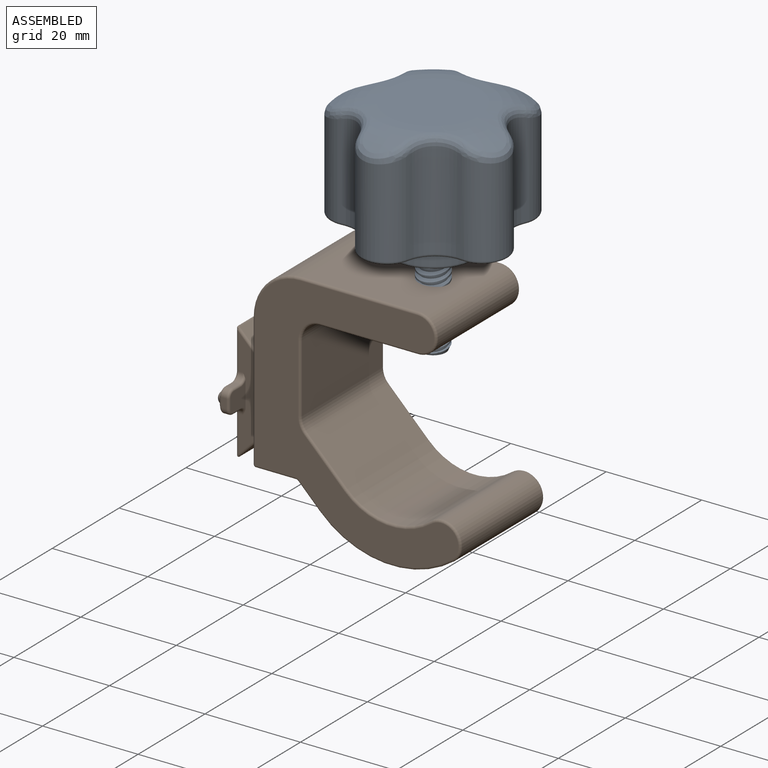
[diagram: assembled view]
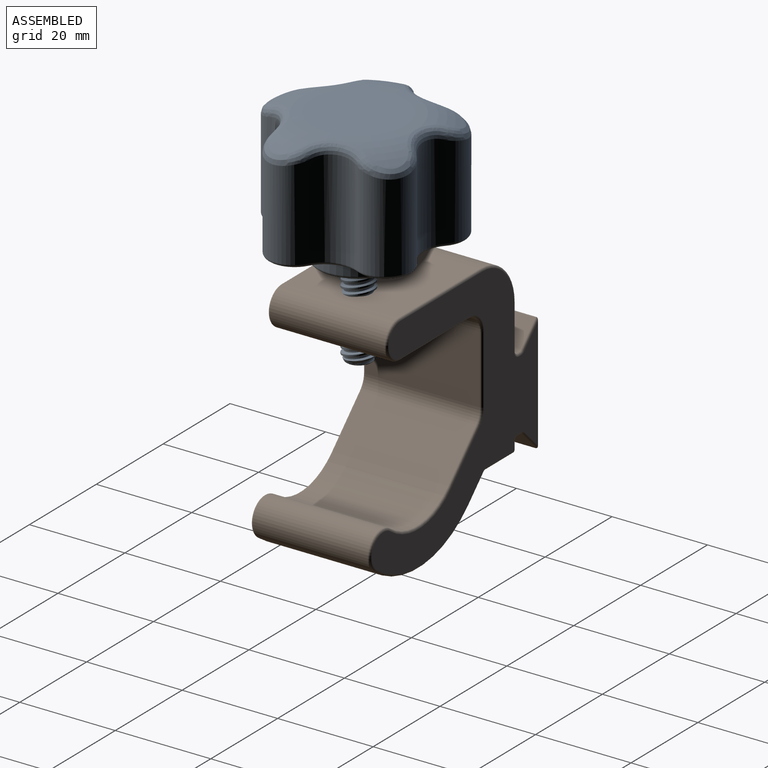
[diagram: assembled view, second angle]
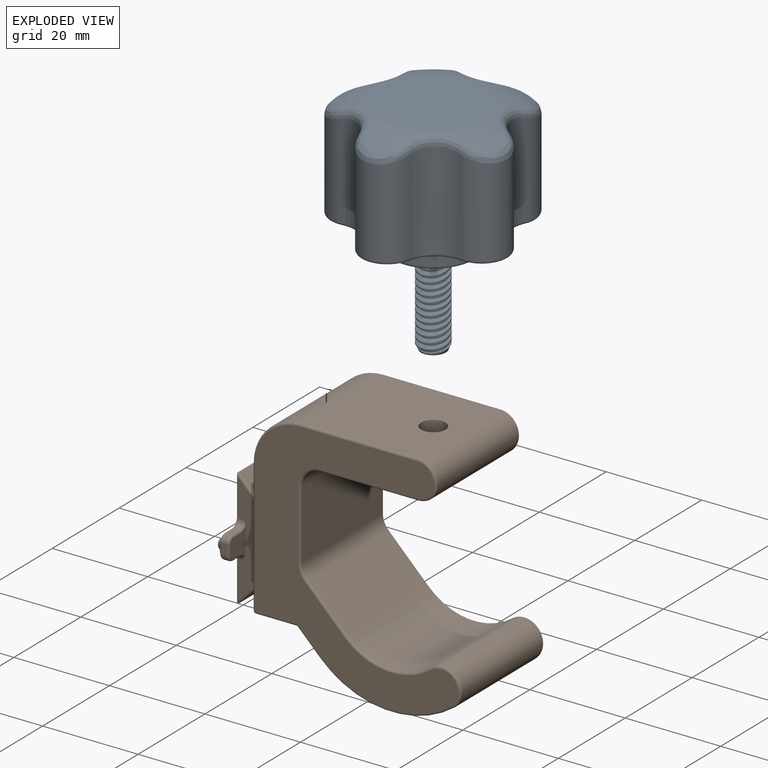
[diagram: exploded view]
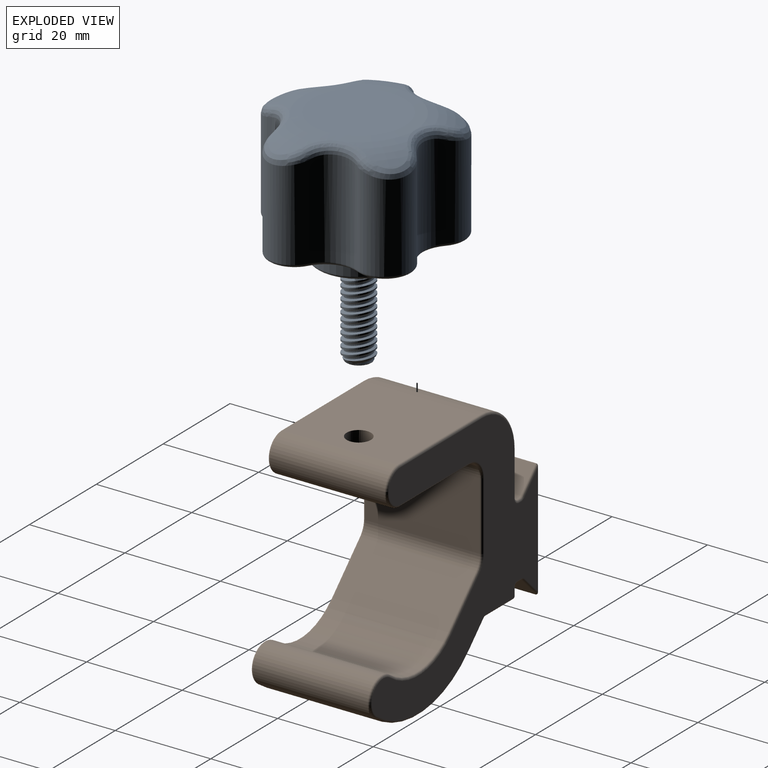
[diagram: exploded view, second angle]
ASSEMBLY  parts=2 mates=2
PART A: 103 faces, bbox 38.2x38.3x46.9 mm
  f0: cone r=2.69mm half-angle=60deg, axis (0,0.2,-0.98), area 0.1mm2, adj f2,f101
  f1: cone r=3.17mm half-angle=25deg, axis (0,0,1), area 0.9mm2, adj f5,f60
  f2: cone r=3.17mm half-angle=25deg, axis (0,0,1), area 13.9mm2, adj f0,f3,f61,f100,f101,f102
  f3: cone r=2.69mm half-angle=60deg, axis (0,0.2,-0.98), area 6.7mm2, adj f2,f4,f61
  f4: cylinder r=2.69mm len=5.39mm, axis (0,-0.2,0.98), area 5.4mm2, adj f3,f5
  f5: cone r=3.38mm half-angle=60deg, axis (0,-0.2,0.98), area 10.9mm2, adj f1,f4,f60
  f6: cone r=2.69mm half-angle=60deg, axis (0,0.2,-0.98), area 12mm2, adj f7,f60
  f7: cylinder r=2.69mm len=5.39mm, axis (0,-0.2,0.98), area 5.4mm2, adj f6,f8
  f8: cone r=3.38mm half-angle=60deg, axis (0,-0.2,0.98), area 11.6mm2, adj f7,f59
  f9: cone r=2.69mm half-angle=60deg, axis (0,0.2,-0.98), area 12mm2, adj f10,f59
  f10: cylinder r=2.69mm len=5.39mm, axis (0,-0.2,0.98), area 5.4mm2, adj f9,f11
  f11: cone r=3.38mm half-angle=60deg, axis (0,-0.2,0.98), area 11.6mm2, adj f10,f58
  f12: cone r=2.69mm half-angle=60deg, axis (0,0.2,-0.98), area 12mm2, adj f13,f58
  f13: cylinder r=2.69mm len=5.39mm, axis (0,-0.2,0.98), area 5.4mm2, adj f12,f14
  f14: cone r=3.38mm half-angle=60deg, axis (0,-0.2,0.98), area 11.6mm2, adj f13,f57
  f15: cone r=2.69mm half-angle=60deg, axis (0,0.2,-0.98), area 12mm2, adj f16,f57
  f16: cylinder r=2.69mm len=5.39mm, axis (0,-0.2,0.98), area 5.4mm2, adj f15,f17
  f17: cone r=3.38mm half-angle=60deg, axis (0,-0.2,0.98), area 11.6mm2, adj f16,f56
  f18: cone r=2.69mm half-angle=60deg, axis (0,0.2,-0.98), area 12mm2, adj f19,f56
  f19: cylinder r=2.69mm len=5.39mm, axis (0,-0.2,0.98), area 5.4mm2, adj f18,f20
  f20: cone r=3.38mm half-angle=60deg, axis (0,-0.2,0.98), area 11.6mm2, adj f19,f55
  f21: cone r=2.69mm half-angle=60deg, axis (0,0.2,-0.98), area 12mm2, adj f22,f55
  f22: cylinder r=2.69mm len=5.39mm, axis (0,-0.2,0.98), area 5.4mm2, adj f21,f23
  f23: cone r=3.38mm half-angle=60deg, axis (0,-0.2,0.98), area 11.6mm2, adj f22,f54
  f24: cone r=2.69mm half-angle=60deg, axis (0,0.2,-0.98), area 12mm2, adj f25,f54
  f25: cylinder r=2.69mm len=5.39mm, axis (0,-0.2,0.98), area 5.4mm2, adj f24,f26
  f26: cone r=3.38mm half-angle=60deg, axis (0,-0.2,0.98), area 11.6mm2, adj f25,f53
  f27: cone r=2.69mm half-angle=60deg, axis (0,0.2,-0.98), area 12mm2, adj f28,f53
  f28: cylinder r=2.69mm len=5.39mm, axis (0,-0.2,0.98), area 5.4mm2, adj f27,f29
  f29: cone r=3.38mm half-angle=60deg, axis (0,-0.2,0.98), area 11.6mm2, adj f28,f52
  f30: cone r=2.69mm half-angle=60deg, axis (0,0.2,-0.98), area 12mm2, adj f31,f52
  f31: cylinder r=2.69mm len=5.39mm, axis (0,-0.2,0.98), area 5.4mm2, adj f30,f32
  f32: cone r=3.38mm half-angle=60deg, axis (0,-0.2,0.98), area 11.6mm2, adj f31,f51
  f33: cone r=2.69mm half-angle=60deg, axis (0,0.2,-0.98), area 12mm2, adj f34,f51
  f34: cylinder r=2.69mm len=5.39mm, axis (0,-0.2,0.98), area 5.4mm2, adj f33,f35
  f35: cone r=3.38mm half-angle=60deg, axis (0,-0.2,0.98), area 11.6mm2, adj f34,f50
  f36: cone r=2.69mm half-angle=60deg, axis (0,0.2,-0.98), area 12mm2, adj f37,f50
  f37: cylinder r=2.69mm len=5.39mm, axis (0,-0.2,0.98), area 5.4mm2, adj f36,f38
  f38: cone r=3.38mm half-angle=60deg, axis (0,-0.2,0.98), area 11.6mm2, adj f37,f49
  f39: cone r=2.69mm half-angle=60deg, axis (0,0.2,-0.98), area 12mm2, adj f40,f49
  f40: cylinder r=2.69mm len=5.39mm, axis (0,-0.2,0.98), area 5.4mm2, adj f39,f41
  f41: cone r=3.38mm half-angle=60deg, axis (0,-0.2,0.98), area 11.6mm2, adj f40,f48
  f42: cylinder r=2.69mm len=5.39mm, axis (0,-0.2,0.98), area 3mm2, adj f43,f71,f99
  f43: cone r=3.38mm half-angle=60deg, axis (0,-0.2,0.98), area 3.8mm2, adj f42,f71,f98
  f44: cone r=2.69mm half-angle=60deg, axis (0,0.2,-0.98), area 11.5mm2, adj f45,f48
  f45: cylinder r=2.69mm len=5.39mm, axis (0,-0.2,0.98), area 5.4mm2, adj f44,f46
  f46: cone r=3.38mm half-angle=60deg, axis (0,-0.2,0.98), area 12mm2, adj f45,f47
  f47: cylinder r=3.17mm len=6.35mm, axis (0,0,-1), area 6.4mm2, adj f46,f71,f99
  f48: cylinder r=3.17mm len=6.35mm, axis (0,0,-1), area 6.8mm2, adj f41,f44
  f49: cylinder r=3.17mm len=6.35mm, axis (0,0,-1), area 6.8mm2, adj f38,f39
  f50: cylinder r=3.17mm len=6.35mm, axis (0,0,-1), area 6.8mm2, adj f35,f36
  f51: cylinder r=3.17mm len=6.35mm, axis (0,0,-1), area 6.8mm2, adj f32,f33
  f52: cylinder r=3.17mm len=6.35mm, axis (0,0,-1), area 6.8mm2, adj f29,f30
  f53: cylinder r=3.17mm len=6.35mm, axis (0,0,-1), area 6.8mm2, adj f26,f27
  f54: cylinder r=3.17mm len=6.35mm, axis (0,0,-1), area 6.8mm2, adj f23,f24
  f55: cylinder r=3.17mm len=6.35mm, axis (0,0,-1), area 6.8mm2, adj f20,f21
  f56: cylinder r=3.17mm len=6.35mm, axis (0,0,-1), area 6.8mm2, adj f17,f18
  f57: cylinder r=3.17mm len=6.35mm, axis (0,0,-1), area 6.8mm2, adj f14,f15
  f58: cylinder r=3.17mm len=6.35mm, axis (0,0,-1), area 6.8mm2, adj f11,f12
  f59: cylinder r=3.17mm len=6.35mm, axis (0,0,-1), area 6.8mm2, adj f8,f9
  f60: cylinder r=3.17mm len=6.35mm, axis (0,0,-1), area 5.8mm2, adj f1,f5,f6
  f61: cylinder r=3.17mm len=4.33mm, axis (0,0,-1), area 0.4mm2, adj f2,f3
  f62: torus R=8.13mm, axis (0,0,1), area 53.5mm2, adj f70,f71
  f63: torus R=7.1mm, axis (0,0,1), area 9.9mm2, adj f68,f72,f85,f87
  f64: torus R=4.88mm, axis (0,0,1), area 14.5mm2, adj f69,f72,f84,f86
  f65: torus R=4.88mm, axis (0,0,1), area 14.5mm2, adj f67,f72,f81,f84
  f66: torus R=9.65mm, axis (0,0,-1), area 423.4mm2, adj f80,f88,f89,f90,f91,f92,f93,f94
  f67: cylinder r=5.51mm len=19.57mm, axis (0,0,1), area 287.1mm2, adj f65,f74,f76,f92
  f68: cylinder r=6.47mm len=20.33mm, axis (0,0,1), area 191.7mm2, adj f63,f77,f78,f93
  f69: cylinder r=5.51mm len=19.57mm, axis (0,0,1), area 291.7mm2, adj f64,f73,f74,f96
  f70: cylinder r=8.76mm len=17.53mm, axis (0,0,1), area 216.8mm2, adj f62,f72
  f71: plane 16.32x16.32mm, normal (0,0,-1), area 179mm2, adj f42,f43,f47,f62,f98,f99
  f72: plane 35.99x34.7mm, normal (0,0,-1), area 544.3mm2, adj f63,f64,f65,f70,f81,f82,f83,f84
  f73: cylinder r=6.47mm len=19.57mm, axis (0,0,1), area 188mm2, adj f69,f77,f86,f97
  f74: cylinder r=6.47mm len=19.57mm, axis (0,0,1), area 188mm2, adj f67,f69,f84,f94
  f75: cylinder r=6.47mm len=19.57mm, axis (0,0,1), area 188mm2, adj f78,f79,f83,f89
  f76: cylinder r=6.47mm len=19.57mm, axis (0,0,1), area 188mm2, adj f67,f79,f81,f90
  f77: cylinder r=5.51mm len=19.57mm, axis (0,0,1), area 296mm2, adj f68,f73,f87,f95
  f78: cylinder r=5.51mm len=19.57mm, axis (0,0,1), area 296mm2, adj f68,f75,f85,f91
  f79: cylinder r=5.51mm len=19.57mm, axis (0,0,1), area 296mm2, adj f75,f76,f82,f88
  f80: plane 19.3x19.3mm, normal (0,0,1), area 292.7mm2, adj f66
  f81: torus R=7.1mm, axis (0,0,1), area 9.9mm2, adj f65,f72,f76,f82
  f82: torus R=4.88mm, axis (0,0,1), area 14.5mm2, adj f72,f79,f81,f83
  f83: torus R=7.1mm, axis (0,0,1), area 9.9mm2, adj f72,f75,f82,f85
  f84: torus R=7.1mm, axis (0,0,1), area 9.9mm2, adj f64,f65,f72,f74
  f85: torus R=4.88mm, axis (0,0,1), area 14.5mm2, adj f63,f72,f78,f83
  f86: torus R=7.1mm, axis (0,0,1), area 9.9mm2, adj f64,f72,f73,f87
  f87: torus R=4.88mm, axis (0,0,1), area 14.5mm2, adj f63,f72,f77,f86
  f88: bspline ~10.81x4.42mm, area 30.2mm2, adj f66,f79,f89,f90
  f89: bspline ~9.59x7.32mm, area 30.8mm2, adj f66,f75,f88,f91
  f90: bspline ~9.59x7.32mm, area 30.8mm2, adj f66,f76,f88,f92
  f91: bspline ~10.35x6.15mm, area 30.2mm2, adj f66,f78,f89,f93
  f92: bspline ~10.32x6.15mm, area 30.2mm2, adj f66,f67,f90,f94
  f93: bspline ~11.28x5.05mm, area 30.8mm2, adj f66,f68,f91,f95
  f94: bspline ~11.28x5.39mm, area 30.8mm2, adj f66,f74,f92,f96
  f95: bspline ~9.27x7.82mm, area 30.2mm2, adj f66,f77,f93,f97
  f96: bspline ~9.24x7.81mm, area 30.2mm2, adj f66,f69,f94,f97
  f97: bspline ~11.86x3.72mm, area 30.8mm2, adj f66,f73,f95,f96
  f98: cylinder r=3.17mm len=5.39mm, axis (0,0,-1), area 1mm2, adj f43,f71
  f99: cone r=2.69mm half-angle=60deg, axis (0,0.2,-0.98), area 8.9mm2, adj f42,f47,f71
  f100: plane 5.22x5.22mm, normal (0,0,-1), area 21.4mm2, adj f2
  f101: cylinder r=2.69mm len=5.29mm, axis (0,-0.2,0.98), area 1.8mm2, adj f0,f2,f102
  f102: cone r=3.38mm half-angle=60deg, axis (0,-0.2,0.98), area 2.5mm2, adj f2,f101
PART B: 118 faces, bbox 52.6x52.8x26.4 mm
  f0: plane 49.56x48.49mm, normal (0,0,1), area 903.3mm2, adj f68,f69,f70,f71,f72,f74,f75,f78
  f1: plane 28.54x24.54mm, normal (0,1,0), area 332.7mm2, adj f15,f25,f72,f100,f101,f106,f110,f111
  f2: plane 24x8.37mm, normal (-0.71,-0.71,0), area 284.1mm2, adj f3,f14,f77,f86
  f3: cylinder r=13.49mm len=24mm, axis (0,0,1), area 462.3mm2, adj f2,f11,f81,f90
  f4: cylinder r=21.49mm len=28.07mm, axis (0,0,1), area 736.3mm2, adj f5,f11,f89,f98
  f5: plane 24x4.55mm, normal (0.71,0.71,0), area 154.5mm2, adj f4,f93,f103,f104
  f6: plane 24x8.48mm, normal (1,0,0), area 203.5mm2, adj f102,f103,f111,f112
  f7: plane 24.5x24mm, normal (-1,0,0), area 567.5mm2, adj f12,f15,f16,f68,f92
  f8: plane 24x20.5mm, normal (1,0,0), area 471.5mm2, adj f12,f13,f16,f71,f84
  f9: plane 24x14.34mm, normal (0,-1,0), area 344.2mm2, adj f13,f14,f76,f78
  f10: plane 48.49x42.56mm, normal (0,0,-1), area 782.6mm2, adj f73,f76,f77,f80,f81,f84,f85,f88
  f11: cylinder r=4mm len=24mm, axis (0,0,1), area 301.6mm2, adj f3,f4,f85,f94
  f12: cylinder r=4mm len=24mm, axis (0,0,-1), area 301.6mm2, adj f7,f8,f69,f88
  f13: cylinder r=4mm len=24mm, axis (0,0,-1), area 150.8mm2, adj f8,f9,f74,f80
  f14: cylinder r=4mm len=24mm, axis (0,0,-1), area 75.4mm2, adj f2,f9,f73,f82
  f15: cylinder r=10mm len=24mm, axis (0,0,1), area 377mm2, adj f1,f7,f70,f96
  f16: cylinder r=2.55mm len=8mm, axis (-1,0,0), area 128.3mm2, adj f7,f8
  f17: plane 19x0.59mm, normal (-1,0,0), area 11.1mm2, adj f25,f27,f59,f79
  f18: plane 19x1.09mm, normal (1,0,0), area 20.6mm2, adj f26,f39,f113,f114
  f19: plane 19x4.28mm, normal (0.71,-0.71,0), area 115mm2, adj f23,f26,f41,f105
  f20: plane 24.29x21.7mm, normal (0,1,0), area 470.2mm2, adj f23,f24,f33,f43,f44,f45,f53,f54
  f21: plane 19x4.28mm, normal (-0.71,-0.71,0), area 115mm2, adj f24,f27,f57,f87
  f22: plane 23.22x6.14mm, normal (0,0,-1), area 94mm2, adj f29,f35,f36,f39,f40,f41,f43,f55
  f23: cylinder r=0.25mm len=19mm, axis (0,0,1), area 11.2mm2, adj f19,f20,f42,f99
  f24: cylinder r=0.25mm len=19mm, axis (0,0,1), area 11.2mm2, adj f20,f21,f56,f91
  f25: cylinder r=1mm len=19mm, axis (0,0,1), area 29.8mm2, adj f1,f17,f60,f75
  f26: cylinder r=1mm len=19mm, axis (0,0,1), area 14.9mm2, adj f18,f19,f40,f109
  f27: cylinder r=1mm len=19mm, axis (0,0,1), area 14.9mm2, adj f17,f21,f58,f83
  f28: plane 2x1.01mm, normal (1,0,0), area 2mm2, adj f36,f38,f45,f46,f66
  f29: plane 5.35x4.5mm, normal (0,-1,0), area 18.2mm2, adj f22,f61,f62,f63,f64,f65,f66,f67
  f30: plane 2x1.01mm, normal (-1,0,0), area 2mm2, adj f35,f37,f52,f53,f62
  f31: plane 2x1.14mm, normal (0,0,-1), area 2.2mm2, adj f37,f38,f48,f49,f50,f64
  f32: sphere r=1.38mm, area 6.8mm2, adj f33,f34
  f33: torus R=2.15mm, axis (0,1,0), area 9.6mm2, adj f20,f32,f34,f46,f47,f48,f50,f51
  f34: bspline ~1.98x0.9mm, area 0.8mm2, adj f32,f33,f49
  f35: cylinder r=1.5mm len=1.5mm, axis (0,-1,0), area 2.4mm2, adj f22,f30,f54,f61
  f36: cylinder r=1.5mm len=1.5mm, axis (0,1,0), area 2.4mm2, adj f22,f28,f44,f67
  f37: cylinder r=1.5mm len=1.5mm, axis (0,-1,0), area 2.4mm2, adj f30,f31,f51,f63
  f38: cylinder r=1.5mm len=1.5mm, axis (0,1,0), area 2.4mm2, adj f28,f31,f47,f65
  f39: cylinder r=0.5mm len=1.09mm, axis (0,-1,0), area 0.9mm2, adj f18,f22,f40,f110
  f40: torus R=1.5mm, axis (0,0,1), area 0.7mm2, adj f22,f26,f39,f41
  f41: cylinder r=0.5mm len=4.63mm, axis (-0.71,-0.71,0), area 4.5mm2, adj f19,f22,f40,f42
  f42: bspline ~1.21x0.56mm, area 0.2mm2, adj f23,f41,f43
  f43: cylinder r=0.5mm len=8.15mm, axis (1,0,0), area 6.2mm2, adj f20,f22,f42,f44
  f44: torus R=2mm, axis (0,1,0), area 2.1mm2, adj f20,f36,f43,f45
  f45: cylinder r=0.5mm len=0.7mm, axis (0,0,1), area 0.5mm2, adj f20,f28,f44,f46
  f46: bspline ~2.71x0.64mm, area 1mm2, adj f28,f33,f45,f47
  f47: bspline ~1.84x1.82mm, area 1.5mm2, adj f33,f38,f46,f48
  f48: bspline ~1.11x0.58mm, area 0.3mm2, adj f31,f33,f47,f49
  f49: bspline ~1.52x0.51mm, area 0.7mm2, adj f31,f34,f48,f50
  f50: bspline ~1.11x0.58mm, area 0.3mm2, adj f31,f33,f49,f51
  f51: bspline ~1.84x1.82mm, area 1.5mm2, adj f33,f37,f50,f52
  f52: bspline ~2.71x0.64mm, area 1mm2, adj f30,f33,f51,f53
  f53: cylinder r=0.5mm len=0.7mm, axis (0,0,-1), area 0.5mm2, adj f20,f30,f52,f54
  f54: torus R=2mm, axis (0,1,0), area 2.1mm2, adj f20,f35,f53,f55
  f55: cylinder r=0.5mm len=8.15mm, axis (1,0,0), area 6.2mm2, adj f20,f22,f54,f56
  f56: bspline ~1.21x0.56mm, area 0.2mm2, adj f24,f55,f57
  f57: cylinder r=0.5mm len=4.63mm, axis (-0.71,0.71,0), area 4.5mm2, adj f21,f22,f56,f58
  f58: torus R=1.5mm, axis (0,0,1), area 0.7mm2, adj f22,f27,f57,f59
  f59: cylinder r=0.5mm len=0.59mm, axis (0,1,0), area 0.5mm2, adj f17,f22,f58,f60
  f60: torus R=1.5mm, axis (0,0,1), area 0.7mm2, adj f22,f25,f59,f100
  f61: torus R=2mm, axis (0,1,0), area 1.6mm2, adj f22,f29,f35,f62
  f62: cylinder r=0.5mm len=2mm, axis (0,0,1), area 1.6mm2, adj f29,f30,f61,f63
  f63: torus R=1mm, axis (0,1,0), area 1.6mm2, adj f29,f37,f62,f64
  f64: cylinder r=0.5mm len=2mm, axis (1,0,0), area 1.6mm2, adj f29,f31,f63,f65
  f65: torus R=1mm, axis (0,1,0), area 1.6mm2, adj f29,f38,f64,f66
  f66: cylinder r=0.5mm len=2mm, axis (0,0,-1), area 1.6mm2, adj f28,f29,f65,f67
  f67: torus R=2mm, axis (0,1,0), area 1.6mm2, adj f22,f29,f36,f66
  f68: cylinder r=0.5mm len=24.5mm, axis (0,-1,0), area 19.2mm2, adj f0,f7,f69,f70
  f69: torus R=3.5mm, axis (0,0,1), area 9.4mm2, adj f0,f12,f68,f71
  f70: torus R=9.5mm, axis (0,0,1), area 12.1mm2, adj f0,f15,f68,f72
  f71: cylinder r=0.5mm len=20.5mm, axis (0,1,0), area 16.1mm2, adj f0,f8,f69,f74
  f72: cylinder r=0.5mm len=9.25mm, axis (-1,0,0), area 7.3mm2, adj f0,f1,f70,f75
  f73: torus R=4.5mm, axis (0,0,1), area 2.6mm2, adj f10,f14,f76,f77
  f74: torus R=4.5mm, axis (0,0,1), area 5.2mm2, adj f0,f13,f71,f78
  f75: torus R=1.5mm, axis (0,0,1), area 1.5mm2, adj f0,f25,f72,f79
  f76: cylinder r=0.5mm len=14.34mm, axis (-1,0,0), area 11.3mm2, adj f9,f10,f73,f80
  f77: cylinder r=0.5mm len=8.72mm, axis (-0.71,0.71,0), area 9.3mm2, adj f2,f10,f73,f81
  f78: cylinder r=0.5mm len=14.34mm, axis (1,0,0), area 11.3mm2, adj f0,f9,f74,f82
  f79: cylinder r=0.5mm len=0.59mm, axis (0,-1,0), area 0.5mm2, adj f0,f17,f75,f83
  f80: torus R=4.5mm, axis (0,0,1), area 5.2mm2, adj f10,f13,f76,f84
  f81: torus R=13.99mm, axis (0,0,1), area 15.3mm2, adj f3,f10,f77,f85
  f82: torus R=4.5mm, axis (0,0,1), area 2.6mm2, adj f0,f14,f78,f86
  f83: torus R=1.5mm, axis (0,0,1), area 0.7mm2, adj f0,f27,f79,f87
  f84: cylinder r=0.5mm len=20.5mm, axis (0,-1,0), area 16.1mm2, adj f8,f10,f80,f88
  f85: torus R=3.5mm, axis (0,0,1), area 9.4mm2, adj f10,f11,f81,f89
  f86: cylinder r=0.5mm len=8.72mm, axis (0.71,-0.71,0), area 9.3mm2, adj f0,f2,f82,f90
  f87: cylinder r=0.5mm len=4.63mm, axis (0.71,-0.71,0), area 4.5mm2, adj f0,f21,f83,f91
  f88: torus R=3.5mm, axis (0,0,1), area 9.4mm2, adj f10,f12,f84,f92
  f89: torus R=20.99mm, axis (0,0,1), area 23.9mm2, adj f4,f10,f85,f93
  f90: torus R=13.99mm, axis (0,0,1), area 15.3mm2, adj f0,f3,f86,f94
  f91: bspline ~1.21x0.56mm, area 0.2mm2, adj f24,f87,f95
  f92: cylinder r=0.5mm len=24.5mm, axis (0,1,0), area 19.2mm2, adj f7,f10,f88,f96
  f93: cylinder r=0.5mm len=4.91mm, axis (0.71,-0.71,0), area 5.1mm2, adj f5,f10,f89,f97
  f94: torus R=3.5mm, axis (0,0,1), area 9.4mm2, adj f0,f11,f90,f98
  f95: cylinder r=0.5mm len=24.29mm, axis (-1,0,0), area 18.6mm2, adj f0,f20,f91,f99
  f96: torus R=9.5mm, axis (0,0,1), area 12.1mm2, adj f10,f15,f92,f101
  f97: torus R=1mm, axis (0,0,1), area 0.4mm2, adj f10,f93,f102,f103
  f98: torus R=20.99mm, axis (0,0,1), area 23.9mm2, adj f0,f4,f94,f104
  f99: bspline ~1.21x0.56mm, area 0.2mm2, adj f23,f95,f105
  f100: bspline ~1.67x1mm, area 0.4mm2, adj f1,f60,f106
  f101: cylinder r=0.5mm len=28mm, axis (1,0,0), area 22mm2, adj f1,f10,f96,f107
  f102: cylinder r=0.5mm len=8.48mm, axis (0,-1,0), area 6.7mm2, adj f6,f10,f97,f107
  f103: cylinder r=0.5mm len=24mm, axis (0,0,-1), area 9.4mm2, adj f5,f6,f97,f108
  f104: cylinder r=0.5mm len=4.91mm, axis (-0.71,0.71,0), area 5.1mm2, adj f0,f5,f98,f108
  f105: cylinder r=0.5mm len=4.63mm, axis (0.71,0.71,0), area 4.5mm2, adj f0,f19,f99,f109
  f106: cylinder r=0.5mm len=14.59mm, axis (-1,0,0), area 11.5mm2, adj f1,f22,f100,f110
  f107: sphere r=0.5mm, area 0.2mm2, adj f101,f102,f111
  f108: torus R=1mm, axis (0,0,1), area 0.4mm2, adj f0,f103,f104,f112
  f109: torus R=1.5mm, axis (0,0,1), area 0.7mm2, adj f0,f26,f105,f113
  f110: torus R=1mm, axis (0,1,0), area 0.8mm2, adj f1,f39,f106,f114
  f111: cylinder r=0.5mm len=24mm, axis (0,0,1), area 18.8mm2, adj f1,f6,f107,f115
  f112: cylinder r=0.5mm len=8.48mm, axis (0,1,0), area 6.7mm2, adj f0,f6,f108,f115
  f113: cylinder r=0.5mm len=1.09mm, axis (0,1,0), area 0.9mm2, adj f0,f18,f109,f116
  f114: cylinder r=0.5mm len=19mm, axis (0,0,1), area 14.9mm2, adj f1,f18,f110,f116
  f115: sphere r=0.5mm, area 0.2mm2, adj f111,f112,f117
  f116: torus R=1mm, axis (0,0,1), area 0.8mm2, adj f0,f113,f114,f117
  f117: cylinder r=0.5mm len=1.75mm, axis (-1,0,0), area 1.4mm2, adj f0,f1,f115,f116
PLACE A t=(-32.14,8.51,20.22)mm
PLACE B rot(axis=(-0.58,0.58,0.58),120deg) t=(-32.14,21.01,-4.21)mm
MATE parallel B.f7 <-> A.f71  axis (0,0,1) through (-39.21,8.51,23.79)mm
MATE slider B.f16 <-> A.f62  axis (0,0,1) through (-32.14,8.51,15.79)mm
